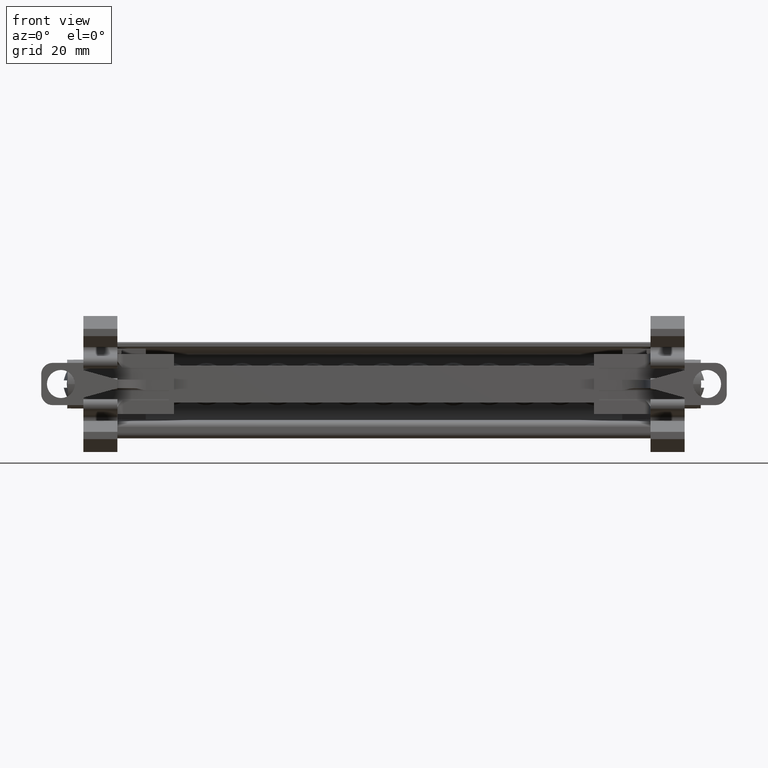
[diagram: clean part render]
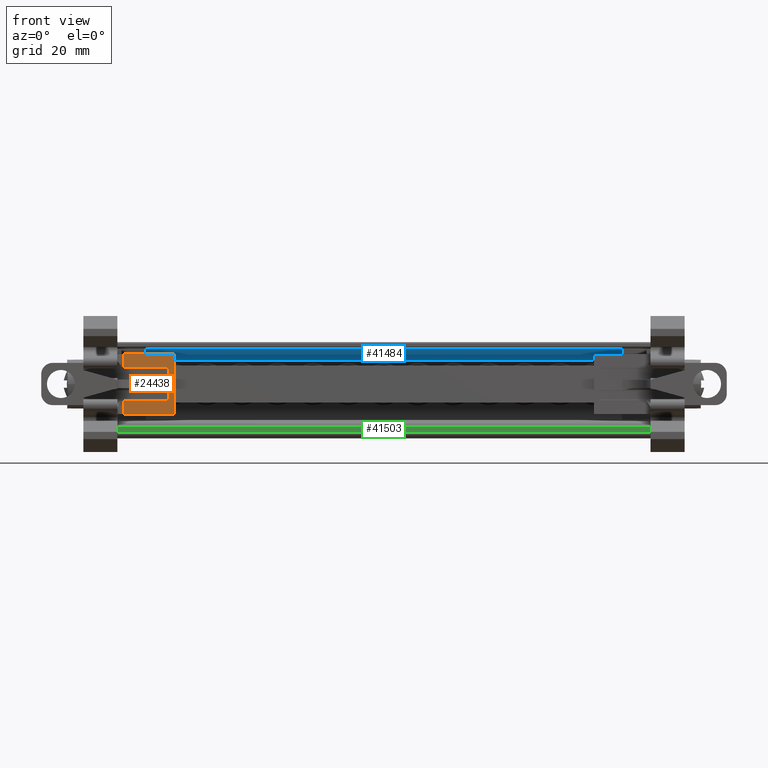
[diagram: same view with three faces highlighted in distinct colors, each labeled with its STEP entity id]
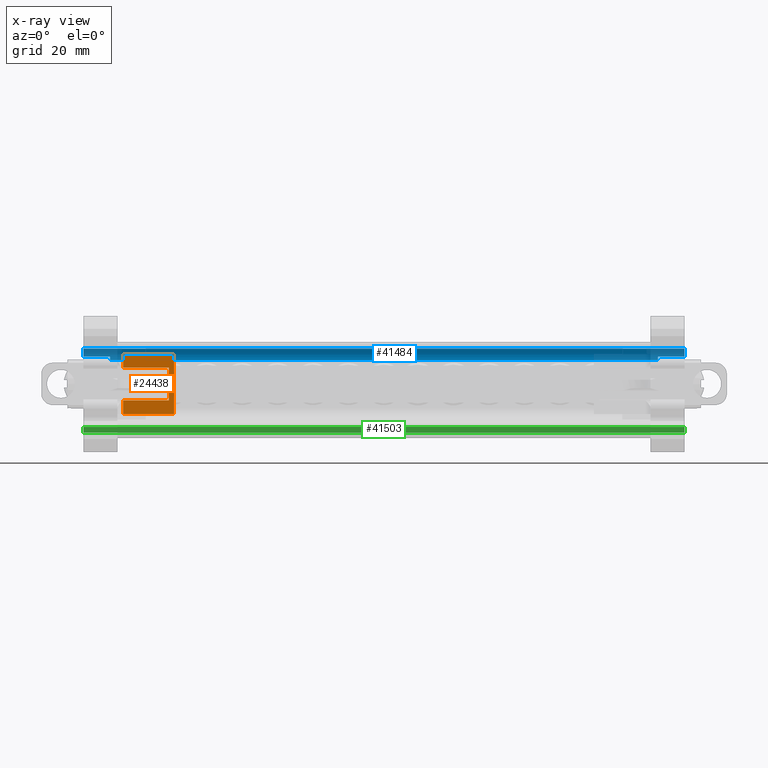
[diagram: x-ray of the same camera — body ghosted, the three highlighted faces saturated]
A machine part, front view with three faces highlighted in distinct colors.
The next image is the same camera in x-ray (body ghosted, the three faces saturated) — at least one of them is partly hidden behind the body in this view.
Their STEP definitions:

[orange] entity #24438 — the highlighted planar face has unit normal (0, -1, -0).
#1007 = AXIS2_PLACEMENT_3D ( 'NONE', #14364, #14359, #14360 ) ;
#6963 = VECTOR ( 'NONE', #34137, 1000.000000000000000 ) ;
#6964 = VECTOR ( 'NONE', #34229, 1000.000000000000000 ) ;
#6968 = VECTOR ( 'NONE', #34142, 1000.000000000000000 ) ;
#6973 = VECTOR ( 'NONE', #34118, 1000.000000000000000 ) ;
#6975 = VECTOR ( 'NONE', #34153, 1000.000000000000000 ) ;
#6986 = VECTOR ( 'NONE', #34402, 1000.000000000000000 ) ;
#6991 = VECTOR ( 'NONE', #34225, 1000.000000000000000 ) ;
#6994 = VECTOR ( 'NONE', #34446, 1000.000000000000000 ) ;
#7016 = VECTOR ( 'NONE', #34271, 1000.000000000000000 ) ;
#7019 = VECTOR ( 'NONE', #34370, 1000.000000000000000 ) ;
#7040 = VECTOR ( 'NONE', #34580, 1000.000000000000000 ) ;
#10524 = EDGE_LOOP ( 'NONE', ( #12217, #12249, #12294, #12210, #12239, #12304, #12212, #12282, #12203, #12265, #12310, #12331 ) ) ;
#12203 = ORIENTED_EDGE ( 'NONE', *, *, #36312, .T. ) ;
#12210 = ORIENTED_EDGE ( 'NONE', *, *, #36318, .T. ) ;
#12212 = ORIENTED_EDGE ( 'NONE', *, *, #36358, .F. ) ;
#12217 = ORIENTED_EDGE ( 'NONE', *, *, #36329, .T. ) ;
#12239 = ORIENTED_EDGE ( 'NONE', *, *, #36310, .T. ) ;
#12249 = ORIENTED_EDGE ( 'NONE', *, *, #36339, .T. ) ;
#12265 = ORIENTED_EDGE ( 'NONE', *, *, #36381, .T. ) ;
#12282 = ORIENTED_EDGE ( 'NONE', *, *, #23864, .F. ) ;
#12294 = ORIENTED_EDGE ( 'NONE', *, *, #36327, .T. ) ;
#12304 = ORIENTED_EDGE ( 'NONE', *, *, #36315, .T. ) ;
#12310 = ORIENTED_EDGE ( 'NONE', *, *, #36313, .T. ) ;
#12331 = ORIENTED_EDGE ( 'NONE', *, *, #36393, .T. ) ;
#14354 = PLANE ( 'NONE',  #1007 ) ;
#14359 = DIRECTION ( 'NONE',  ( 1.123605221868038000E-014, -1.000000000000000000, -1.387778780781406000E-013 ) ) ;
#14360 = DIRECTION ( 'NONE',  ( 0.0000000000000000000, 1.387778780781406000E-013, -1.000000000000000000 ) ) ;
#14363 = FACE_OUTER_BOUND ( 'NONE', #10524, .T. ) ;
#14364 = CARTESIAN_POINT ( 'NONE',  ( -299.0354392833575000, -124.3970366618717800, 135.5568043526854800 ) ) ;
#20265 = VECTOR ( 'NONE', #23045, 1000.000000000000000 ) ;
#23045 = DIRECTION ( 'NONE',  ( 2.589419078425440300E-015, 2.909484798123454300E-029, -1.000000000000000000 ) ) ;
#23055 = CARTESIAN_POINT ( 'NONE',  ( -281.9794392833576400, -124.3970366618717100, 144.2704419905295500 ) ) ;
#23078 = LINE ( 'NONE', #23055, #20265 ) ;
#23864 = EDGE_CURVE ( 'NONE', #40103, #40081, #23078, .T. ) ;
#24438 = ADVANCED_FACE ( 'NONE', ( #14363 ), #14354, .T. ) ;
#34108 = CARTESIAN_POINT ( 'NONE',  ( -299.0354392833575000, -124.3970366618732700, 146.2347488561995600 ) ) ;
#34118 = DIRECTION ( 'NONE',  ( -1.000000000000000000, -1.123605221868038000E-014, -1.559315484883646900E-027 ) ) ;
#34121 = CARTESIAN_POINT ( 'NONE',  ( -299.0354392833575000, -124.3970366618729300, 143.8263190699883000 ) ) ;
#34129 = LINE ( 'NONE', #34131, #6963 ) ;
#34131 = CARTESIAN_POINT ( 'NONE',  ( -290.9714392833575400, -124.3970366618716800, 135.5568043526854800 ) ) ;
#34133 = LINE ( 'NONE', #34121, #6975 ) ;
#34137 = DIRECTION ( 'NONE',  ( 0.0000000000000000000, 1.387778780781406000E-013, -1.000000000000000000 ) ) ;
#34142 = DIRECTION ( 'NONE',  ( -1.000000000000000000, -1.123605221868038000E-014, -1.559315484883646900E-027 ) ) ;
#34153 = DIRECTION ( 'NONE',  ( 1.000000000000000000, 1.123605221868038000E-014, 1.559315484883646900E-027 ) ) ;
#34154 = CARTESIAN_POINT ( 'NONE',  ( -299.0354392833575000, -124.3970366618721400, 138.0511782067145500 ) ) ;
#34163 = LINE ( 'NONE', #34154, #6973 ) ;
#34187 = LINE ( 'NONE', #34108, #6968 ) ;
#34202 = LINE ( 'NONE', #34289, #6964 ) ;
#34207 = LINE ( 'NONE', #34263, #6991 ) ;
#34212 = LINE ( 'NONE', #34303, #7016 ) ;
#34225 = DIRECTION ( 'NONE',  ( 1.000000000000000000, 1.123605221868038000E-014, 1.559315484883646900E-027 ) ) ;
#34229 = DIRECTION ( 'NONE',  ( 0.0000000000000000000, 1.387778780781406000E-013, -1.000000000000000000 ) ) ;
#34263 = CARTESIAN_POINT ( 'NONE',  ( -299.0354392833575000, -124.3970366618723800, 139.8216686642307400 ) ) ;
#34271 = DIRECTION ( 'NONE',  ( -1.000000000000000000, -1.123605221868038000E-014, -1.559315484883646900E-027 ) ) ;
#34289 = CARTESIAN_POINT ( 'NONE',  ( -282.8994392833575900, -124.3970366618716000, 135.5568043526854800 ) ) ;
#34303 = CARTESIAN_POINT ( 'NONE',  ( -299.0354392833575000, -124.3970366618726300, 141.6887486815515400 ) ) ;
#34309 = LINE ( 'NONE', #34314, #6986 ) ;
#34314 = CARTESIAN_POINT ( 'NONE',  ( -286.9394392833575000, -124.3970366618716400, 135.5568043526854800 ) ) ;
#34320 = CARTESIAN_POINT ( 'NONE',  ( -214.3533592833575200, -124.3970366618717100, 135.6507488562022300 ) ) ;
#34368 = LINE ( 'NONE', #34320, #7019 ) ;
#34370 = DIRECTION ( 'NONE',  ( -1.000000000000000000, 3.582068324215832900E-028, -2.589419078423884300E-015 ) ) ;
#34402 = DIRECTION ( 'NONE',  ( 0.0000000000000000000, 1.387778780781406000E-013, -1.000000000000000000 ) ) ;
#34439 = LINE ( 'NONE', #34444, #6994 ) ;
#34444 = CARTESIAN_POINT ( 'NONE',  ( -290.9714392833575400, -124.3970366618716800, 135.5568043526854800 ) ) ;
#34446 = DIRECTION ( 'NONE',  ( 0.0000000000000000000, 1.387778780781406000E-013, -1.000000000000000000 ) ) ;
#34571 = CARTESIAN_POINT ( 'NONE',  ( -282.8994392833575900, -124.3970366618716000, 135.5568043526854800 ) ) ;
#34580 = DIRECTION ( 'NONE',  ( 0.0000000000000000000, 1.387778780781406000E-013, -1.000000000000000000 ) ) ;
#34592 = LINE ( 'NONE', #34571, #7040 ) ;
#36310 = EDGE_CURVE ( 'NONE', #40090, #40087, #34163, .T. ) ;
#36312 = EDGE_CURVE ( 'NONE', #40103, #40100, #34187, .T. ) ;
#36313 = EDGE_CURVE ( 'NONE', #40101, #40094, #34133, .T. ) ;
#36315 = EDGE_CURVE ( 'NONE', #40087, #40095, #34129, .T. ) ;
#36318 = EDGE_CURVE ( 'NONE', #40068, #40090, #34202, .T. ) ;
#36327 = EDGE_CURVE ( 'NONE', #40111, #40068, #34207, .T. ) ;
#36329 = EDGE_CURVE ( 'NONE', #40079, #40088, #34212, .T. ) ;
#36339 = EDGE_CURVE ( 'NONE', #40088, #40111, #34309, .T. ) ;
#36358 = EDGE_CURVE ( 'NONE', #40081, #40095, #34368, .T. ) ;
#36381 = EDGE_CURVE ( 'NONE', #40100, #40101, #34439, .T. ) ;
#36393 = EDGE_CURVE ( 'NONE', #40094, #40079, #34592, .T. ) ;
#37682 = CARTESIAN_POINT ( 'NONE',  ( -286.9394392833575000, -124.3970366618724900, 141.6887486815518000 ) ) ;
#37683 = CARTESIAN_POINT ( 'NONE',  ( -290.9714392833575400, -124.3970366618731700, 146.2347488561996700 ) ) ;
#37684 = CARTESIAN_POINT ( 'NONE',  ( -281.9794392833575800, -124.3970366618723900, 146.2347488561997000 ) ) ;
#37685 = CARTESIAN_POINT ( 'NONE',  ( -290.9714392833575400, -124.3970366618720500, 138.0511781942281900 ) ) ;
#37691 = CARTESIAN_POINT ( 'NONE',  ( -282.8994392833575900, -124.3970366602442700, 143.8263190595859000 ) ) ;
#37694 = CARTESIAN_POINT ( 'NONE',  ( -286.9394392833575000, -124.3970366618722400, 139.8216686642307400 ) ) ;
#37699 = CARTESIAN_POINT ( 'NONE',  ( -282.8994392833575900, -124.3970366587754800, 139.8216686529887900 ) ) ;
#37706 = CARTESIAN_POINT ( 'NONE',  ( -290.9714392833575400, -124.3970366618724600, 143.8263190699883000 ) ) ;
#37708 = CARTESIAN_POINT ( 'NONE',  ( -290.9714392833574800, -124.3970366618717100, 135.6507488562020600 ) ) ;
#37719 = CARTESIAN_POINT ( 'NONE',  ( -281.9794392833575800, -124.3970366618716800, 135.6507488562023100 ) ) ;
#37725 = CARTESIAN_POINT ( 'NONE',  ( -282.8994392833575900, -124.3970366618724500, 141.6887486815515700 ) ) ;
#37729 = CARTESIAN_POINT ( 'NONE',  ( -282.8994392833575900, -124.3970366602629300, 138.0511782065901500 ) ) ;
#40068 = VERTEX_POINT ( 'NONE', #37699 ) ;
#40079 = VERTEX_POINT ( 'NONE', #37725 ) ;
#40081 = VERTEX_POINT ( 'NONE', #37719 ) ;
#40087 = VERTEX_POINT ( 'NONE', #37685 ) ;
#40088 = VERTEX_POINT ( 'NONE', #37682 ) ;
#40090 = VERTEX_POINT ( 'NONE', #37729 ) ;
#40094 = VERTEX_POINT ( 'NONE', #37691 ) ;
#40095 = VERTEX_POINT ( 'NONE', #37708 ) ;
#40100 = VERTEX_POINT ( 'NONE', #37683 ) ;
#40101 = VERTEX_POINT ( 'NONE', #37706 ) ;
#40103 = VERTEX_POINT ( 'NONE', #37684 ) ;
#40111 = VERTEX_POINT ( 'NONE', #37694 ) ;

[blue] entity #41484 — the highlighted cylindrical surface (edge-blend (fillet) strip) has radius 2.0067 mm, axis along (-1, -0, -0).
#183 = VECTOR ( 'NONE', #22327, 1000.000000000000000 ) ;
#214 = CIRCLE ( 'NONE', #229, 2.006722024509993900 ) ;
#229 = AXIS2_PLACEMENT_3D ( 'NONE', #22497, #22524, #22516 ) ;
#372 = AXIS2_PLACEMENT_3D ( 'NONE', #13401, #13369, #13397 ) ;
#409 = CIRCLE ( 'NONE', #372, 2.006722024509993900 ) ;
#440 = VECTOR ( 'NONE', #13478, 1000.000000000000000 ) ;
#467 = CIRCLE ( 'NONE', #509, 2.006722024509993900 ) ;
#488 = VECTOR ( 'NONE', #13453, 1000.000000000000000 ) ;
#492 = VECTOR ( 'NONE', #13472, 1000.000000000000000 ) ;
#509 = AXIS2_PLACEMENT_3D ( 'NONE', #13572, #13585, #13573 ) ;
#551 = AXIS2_PLACEMENT_3D ( 'NONE', #13682, #13694, #13683 ) ;
#586 = CIRCLE ( 'NONE', #551, 2.006722024509993900 ) ;
#9276 = VERTEX_POINT ( 'NONE', #16053 ) ;
#9302 = VERTEX_POINT ( 'NONE', #16042 ) ;
#9341 = VERTEX_POINT ( 'NONE', #16145 ) ;
#10274 = VERTEX_POINT ( 'NONE', #16149 ) ;
#10949 = EDGE_LOOP ( 'NONE', ( #21463, #21455, #21469, #21460, #21479, #21465, #21461, #21488 ) ) ;
#11698 = AXIS2_PLACEMENT_3D ( 'NONE', #34866, #34838, #34869 ) ;
#13369 = DIRECTION ( 'NONE',  ( 1.000000000000000000, 1.094139335893506200E-014, -1.161754202389524500E-014 ) ) ;
#13397 = DIRECTION ( 'NONE',  ( 0.0000000000000000000, 0.0000000000000000000, -1.000000000000000000 ) ) ;
#13401 = CARTESIAN_POINT ( 'NONE',  ( -297.9752350520589100, -101.8857587043912100, 145.1535837252635600 ) ) ;
#13441 = LINE ( 'NONE', #13458, #488 ) ;
#13453 = DIRECTION ( 'NONE',  ( -1.000000000000000000, -1.094038394468753200E-014, -2.348387376010265700E-015 ) ) ;
#13458 = CARTESIAN_POINT ( 'NONE',  ( -241.9227637199361700, -99.96382902428135300, 145.7307488561999900 ) ) ;
#13469 = LINE ( 'NONE', #13483, #440 ) ;
#13472 = DIRECTION ( 'NONE',  ( -1.000000000000000000, -1.094038394468753200E-014, -2.348387376010265700E-015 ) ) ;
#13478 = DIRECTION ( 'NONE',  ( -1.000000000000000000, -1.094038394468753200E-014, -2.348387376010265700E-015 ) ) ;
#13483 = CARTESIAN_POINT ( 'NONE',  ( -223.4227637199361700, -101.8507365760190500, 147.1600001162916600 ) ) ;
#13499 = LINE ( 'NONE', #13506, #492 ) ;
#13506 = CARTESIAN_POINT ( 'NONE',  ( -241.9227637199361700, -99.96382902428136700, 145.7307488562000200 ) ) ;
#13572 = CARTESIAN_POINT ( 'NONE',  ( -196.6952073091447100, -101.8857587043901000, 145.1535837252637900 ) ) ;
#13573 = DIRECTION ( 'NONE',  ( 1.383130063687138400E-014, -1.000000000000000000, 0.0000000000000000000 ) ) ;
#13585 = DIRECTION ( 'NONE',  ( -1.000000000000000000, -1.100161628464490100E-014, -2.352285033424550400E-015 ) ) ;
#13682 = CARTESIAN_POINT ( 'NONE',  ( -293.2636712575702500, -101.8857587043911500, 145.1535837252635900 ) ) ;
#13683 = DIRECTION ( 'NONE',  ( 0.0000000000000000000, 1.000000000000000000, 0.0000000000000000000 ) ) ;
#13694 = DIRECTION ( 'NONE',  ( 1.000000000000000000, 1.123605221868002000E-014, 2.589419078425440300E-015 ) ) ;
#16042 = CARTESIAN_POINT ( 'NONE',  ( -191.9827637199368300, -99.96382902428082700, 145.7307488562001400 ) ) ;
#16053 = CARTESIAN_POINT ( 'NONE',  ( -293.2636712575702500, -99.87903667988337000, 145.1535837252635900 ) ) ;
#16145 = CARTESIAN_POINT ( 'NONE',  ( -191.9827637199368600, -101.8507365760187000, 147.1600001162917400 ) ) ;
#16149 = CARTESIAN_POINT ( 'NONE',  ( -196.6952073091446800, -99.87903667988010200, 145.1535837252718600 ) ) ;
#19521 = VERTEX_POINT ( 'NONE', #23342 ) ;
#19558 = VERTEX_POINT ( 'NONE', #23313 ) ;
#19567 = VERTEX_POINT ( 'NONE', #23380 ) ;
#19579 = VERTEX_POINT ( 'NONE', #23356 ) ;
#21455 = ORIENTED_EDGE ( 'NONE', *, *, #24063, .T. ) ;
#21460 = ORIENTED_EDGE ( 'NONE', *, *, #24160, .F. ) ;
#21461 = ORIENTED_EDGE ( 'NONE', *, *, #24017, .F. ) ;
#21463 = ORIENTED_EDGE ( 'NONE', *, *, #24184, .F. ) ;
#21465 = ORIENTED_EDGE ( 'NONE', *, *, #24229, .F. ) ;
#21469 = ORIENTED_EDGE ( 'NONE', *, *, #24181, .T. ) ;
#21479 = ORIENTED_EDGE ( 'NONE', *, *, #24178, .F. ) ;
#21488 = ORIENTED_EDGE ( 'NONE', *, *, #24207, .F. ) ;
#22319 = LINE ( 'NONE', #22349, #183 ) ;
#22327 = DIRECTION ( 'NONE',  ( -1.000000000000000000, -1.094038394468753200E-014, -2.348387376010265700E-015 ) ) ;
#22349 = CARTESIAN_POINT ( 'NONE',  ( -241.9227637199361100, -99.87903667988059900, 145.1535837252717400 ) ) ;
#22497 = CARTESIAN_POINT ( 'NONE',  ( -191.9827637199368600, -101.8857587043900600, 145.1535837252637900 ) ) ;
#22516 = DIRECTION ( 'NONE',  ( -2.766260127374276900E-014, -1.000000000000000000, 1.383130063687138400E-014 ) ) ;
#22524 = DIRECTION ( 'NONE',  ( 1.000000000000000000, -2.114566672224292200E-014, 2.348391420541409500E-015 ) ) ;
#23313 = CARTESIAN_POINT ( 'NONE',  ( -297.9752350520589100, -99.96382902428196400, 145.7307488561998500 ) ) ;
#23342 = CARTESIAN_POINT ( 'NONE',  ( -297.9752350520588500, -101.8507365760198700, 147.1600001162914900 ) ) ;
#23356 = CARTESIAN_POINT ( 'NONE',  ( -293.2636712575702500, -99.96382902428192100, 145.7307488561998800 ) ) ;
#23380 = CARTESIAN_POINT ( 'NONE',  ( -196.6952073091447300, -99.96382902428086900, 145.7307488562001400 ) ) ;
#24017 = EDGE_CURVE ( 'NONE', #10274, #9276, #22319, .T. ) ;
#24063 = EDGE_CURVE ( 'NONE', #9302, #9341, #214, .T. ) ;
#24160 = EDGE_CURVE ( 'NONE', #19558, #19521, #409, .T. ) ;
#24178 = EDGE_CURVE ( 'NONE', #19579, #19558, #13441, .T. ) ;
#24181 = EDGE_CURVE ( 'NONE', #9341, #19521, #13469, .T. ) ;
#24184 = EDGE_CURVE ( 'NONE', #9302, #19567, #13499, .T. ) ;
#24207 = EDGE_CURVE ( 'NONE', #19567, #10274, #467, .T. ) ;
#24229 = EDGE_CURVE ( 'NONE', #9276, #19579, #586, .T. ) ;
#34838 = DIRECTION ( 'NONE',  ( -1.000000000000000000, -1.094038394468753200E-014, -2.348387376010265700E-015 ) ) ;
#34866 = CARTESIAN_POINT ( 'NONE',  ( -241.9227637199361400, -101.8857587043906000, 145.1535837252636700 ) ) ;
#34869 = DIRECTION ( 'NONE',  ( 0.0000000000000000000, -4.840955222904984500E-014, 1.000000000000000000 ) ) ;
#34881 = CYLINDRICAL_SURFACE ( 'NONE', #11698, 2.006722024509993900 ) ;
#34898 = FACE_OUTER_BOUND ( 'NONE', #10949, .T. ) ;
#41484 = ADVANCED_FACE ( 'NONE', ( #34898 ), #34881, .F. ) ;

[green] entity #41503 — the highlighted planar face has unit normal (0, -1, -0).
#212 = VECTOR ( 'NONE', #22471, 1000.000000000000000 ) ;
#321 = VECTOR ( 'NONE', #13352, 1000.000000000000000 ) ;
#353 = VECTOR ( 'NONE', #13315, 1000.000000000000000 ) ;
#391 = VECTOR ( 'NONE', #13308, 1000.000000000000000 ) ;
#433 = VECTOR ( 'NONE', #13429, 1000.000000000000000 ) ;
#8449 = ORIENTED_EDGE ( 'NONE', *, *, #24146, .T. ) ;
#8456 = ORIENTED_EDGE ( 'NONE', *, *, #24150, .F. ) ;
#8485 = ORIENTED_EDGE ( 'NONE', *, *, #24158, .T. ) ;
#8499 = ORIENTED_EDGE ( 'NONE', *, *, #24126, .T. ) ;
#8524 = ORIENTED_EDGE ( 'NONE', *, *, #24174, .T. ) ;
#8527 = ORIENTED_EDGE ( 'NONE', *, *, #24135, .F. ) ;
#8534 = ORIENTED_EDGE ( 'NONE', *, *, #24057, .T. ) ;
#9293 = VERTEX_POINT ( 'NONE', #16068 ) ;
#9313 = VERTEX_POINT ( 'NONE', #16058 ) ;
#10928 = EDGE_LOOP ( 'NONE', ( #8449, #8534, #8524, #8456, #8485, #8499, #8527 ) ) ;
#11692 = AXIS2_PLACEMENT_3D ( 'NONE', #34978, #34982, #34934 ) ;
#13294 = LINE ( 'NONE', #13299, #391 ) ;
#13299 = CARTESIAN_POINT ( 'NONE',  ( -222.7727637199363400, -122.1536580816254400, 133.3520513116870100 ) ) ;
#13301 = LINE ( 'NONE', #13314, #353 ) ;
#13308 = DIRECTION ( 'NONE',  ( -1.000000000000000000, -1.094038394468753200E-014, -2.348387376010265700E-015 ) ) ;
#13314 = CARTESIAN_POINT ( 'NONE',  ( -297.9752350520587900, -122.1536580816260800, 132.3618874053187000 ) ) ;
#13315 = DIRECTION ( 'NONE',  ( 1.161754202389576100E-014, -4.711469516094826900E-014, 1.000000000000000000 ) ) ;
#13336 = CARTESIAN_POINT ( 'NONE',  ( -373.4252350520588400, -122.1536580816269000, 132.3618874053196100 ) ) ;
#13339 = CARTESIAN_POINT ( 'NONE',  ( -217.4489993859978400, -122.1536389762606700, 133.3608080107530300 ) ) ;
#13340 = CARTESIAN_POINT ( 'NONE',  ( -217.0798152552778200, -122.1536453450376200, 133.3578889628551000 ) ) ;
#13342 = CARTESIAN_POINT ( 'NONE',  ( -216.3414469938378200, -122.1536580816258800, 133.3520513116869500 ) ) ;
#13347 = CARTESIAN_POINT ( 'NONE',  ( -216.7106311245578400, -122.1536580816250700, 133.3549701372711800 ) ) ;
#13352 = DIRECTION ( 'NONE',  ( 1.000000000000000000, 1.094038394468816000E-014, -1.161753797936259400E-014 ) ) ;
#13359 = LINE ( 'NONE', #13336, #321 ) ;
#13375 = CARTESIAN_POINT ( 'NONE',  ( -217.4489993859976700, -122.1536580816252400, 133.3578891110639700 ) ) ;
#13378 = CARTESIAN_POINT ( 'NONE',  ( -217.4489993859976700, -122.1536580816252400, 133.3549702113749000 ) ) ;
#13382 = CARTESIAN_POINT ( 'NONE',  ( -217.4489993859978400, -122.1536580816258800, 133.3520513116869500 ) ) ;
#13389 = CARTESIAN_POINT ( 'NONE',  ( -217.4489993859978400, -122.1536389762606700, 133.3608080107530300 ) ) ;
#13427 = CARTESIAN_POINT ( 'NONE',  ( -192.5977637199363000, -122.1536580816255900, 133.3520513116868400 ) ) ;
#13428 = LINE ( 'NONE', #13427, #433 ) ;
#13429 = DIRECTION ( 'NONE',  ( -1.000000000000000000, -1.094038394468753200E-014, -2.348387376010265700E-015 ) ) ;
#15556 = B_SPLINE_CURVE_WITH_KNOTS ( 'NONE', 3,
 ( #13389, #13375, #13378, #13382 ),
 .UNSPECIFIED., .F., .F.,
 ( 4, 4 ),
 ( 1.904125690304445100E-005, 1.000000000000000000 ),
 .UNSPECIFIED. ) ;
#15908 = B_SPLINE_CURVE_WITH_KNOTS ( 'NONE', 3,
 ( #13339, #13340, #13347, #13342 ),
 .UNSPECIFIED., .F., .F.,
 ( 4, 4 ),
 ( 0.0000000000000000000, 1.000000000000000000 ),
 .UNSPECIFIED. ) ;
#16058 = CARTESIAN_POINT ( 'NONE',  ( -191.9827637199372500, -122.1536580816255900, 133.3520513116868400 ) ) ;
#16068 = CARTESIAN_POINT ( 'NONE',  ( -191.9827637199372800, -122.1536580816249100, 132.3618874053174700 ) ) ;
#19494 = VERTEX_POINT ( 'NONE', #23305 ) ;
#19575 = VERTEX_POINT ( 'NONE', #23377 ) ;
#19585 = VERTEX_POINT ( 'NONE', #23365 ) ;
#19599 = VERTEX_POINT ( 'NONE', #23347 ) ;
#19608 = VERTEX_POINT ( 'NONE', #23400 ) ;
#22446 = LINE ( 'NONE', #22482, #212 ) ;
#22471 = DIRECTION ( 'NONE',  ( -2.348391420542405800E-015, -4.711469516094842000E-014, 1.000000000000000000 ) ) ;
#22482 = CARTESIAN_POINT ( 'NONE',  ( -191.9827637199372800, -122.1536580816250300, 134.6593379560190700 ) ) ;
#23305 = CARTESIAN_POINT ( 'NONE',  ( -297.9752350520587900, -122.1536580816262600, 133.3520513116868400 ) ) ;
#23347 = CARTESIAN_POINT ( 'NONE',  ( -217.4489993859978400, -122.1536580816258800, 133.3520513116869500 ) ) ;
#23365 = CARTESIAN_POINT ( 'NONE',  ( -216.3414469938378200, -122.1536580816258800, 133.3520513116869500 ) ) ;
#23377 = CARTESIAN_POINT ( 'NONE',  ( -217.4489993859978400, -122.1536389762606700, 133.3608080107530300 ) ) ;
#23400 = CARTESIAN_POINT ( 'NONE',  ( -297.9752350520587900, -122.1536580816260800, 132.3618874053187000 ) ) ;
#24057 = EDGE_CURVE ( 'NONE', #9293, #9313, #22446, .T. ) ;
#24126 = EDGE_CURVE ( 'NONE', #19599, #19494, #13294, .T. ) ;
#24135 = EDGE_CURVE ( 'NONE', #19608, #19494, #13301, .T. ) ;
#24146 = EDGE_CURVE ( 'NONE', #19608, #9293, #13359, .T. ) ;
#24150 = EDGE_CURVE ( 'NONE', #19575, #19585, #15908, .T. ) ;
#24158 = EDGE_CURVE ( 'NONE', #19575, #19599, #15556, .T. ) ;
#24174 = EDGE_CURVE ( 'NONE', #9313, #19585, #13428, .T. ) ;
#34928 = FACE_OUTER_BOUND ( 'NONE', #10928, .T. ) ;
#34934 = DIRECTION ( 'NONE',  ( -1.000000000000000000, -1.094038394468816000E-014, 1.161753797936259400E-014 ) ) ;
#34978 = CARTESIAN_POINT ( 'NONE',  ( -373.4252350520588400, -122.1536580816269000, 132.3618874053196100 ) ) ;
#34982 = DIRECTION ( 'NONE',  ( 1.094038394468761200E-014, -1.000000000000000000, -4.711469516094839500E-014 ) ) ;
#35007 = PLANE ( 'NONE',  #11692 ) ;
#41503 = ADVANCED_FACE ( 'NONE', ( #34928 ), #35007, .T. ) ;